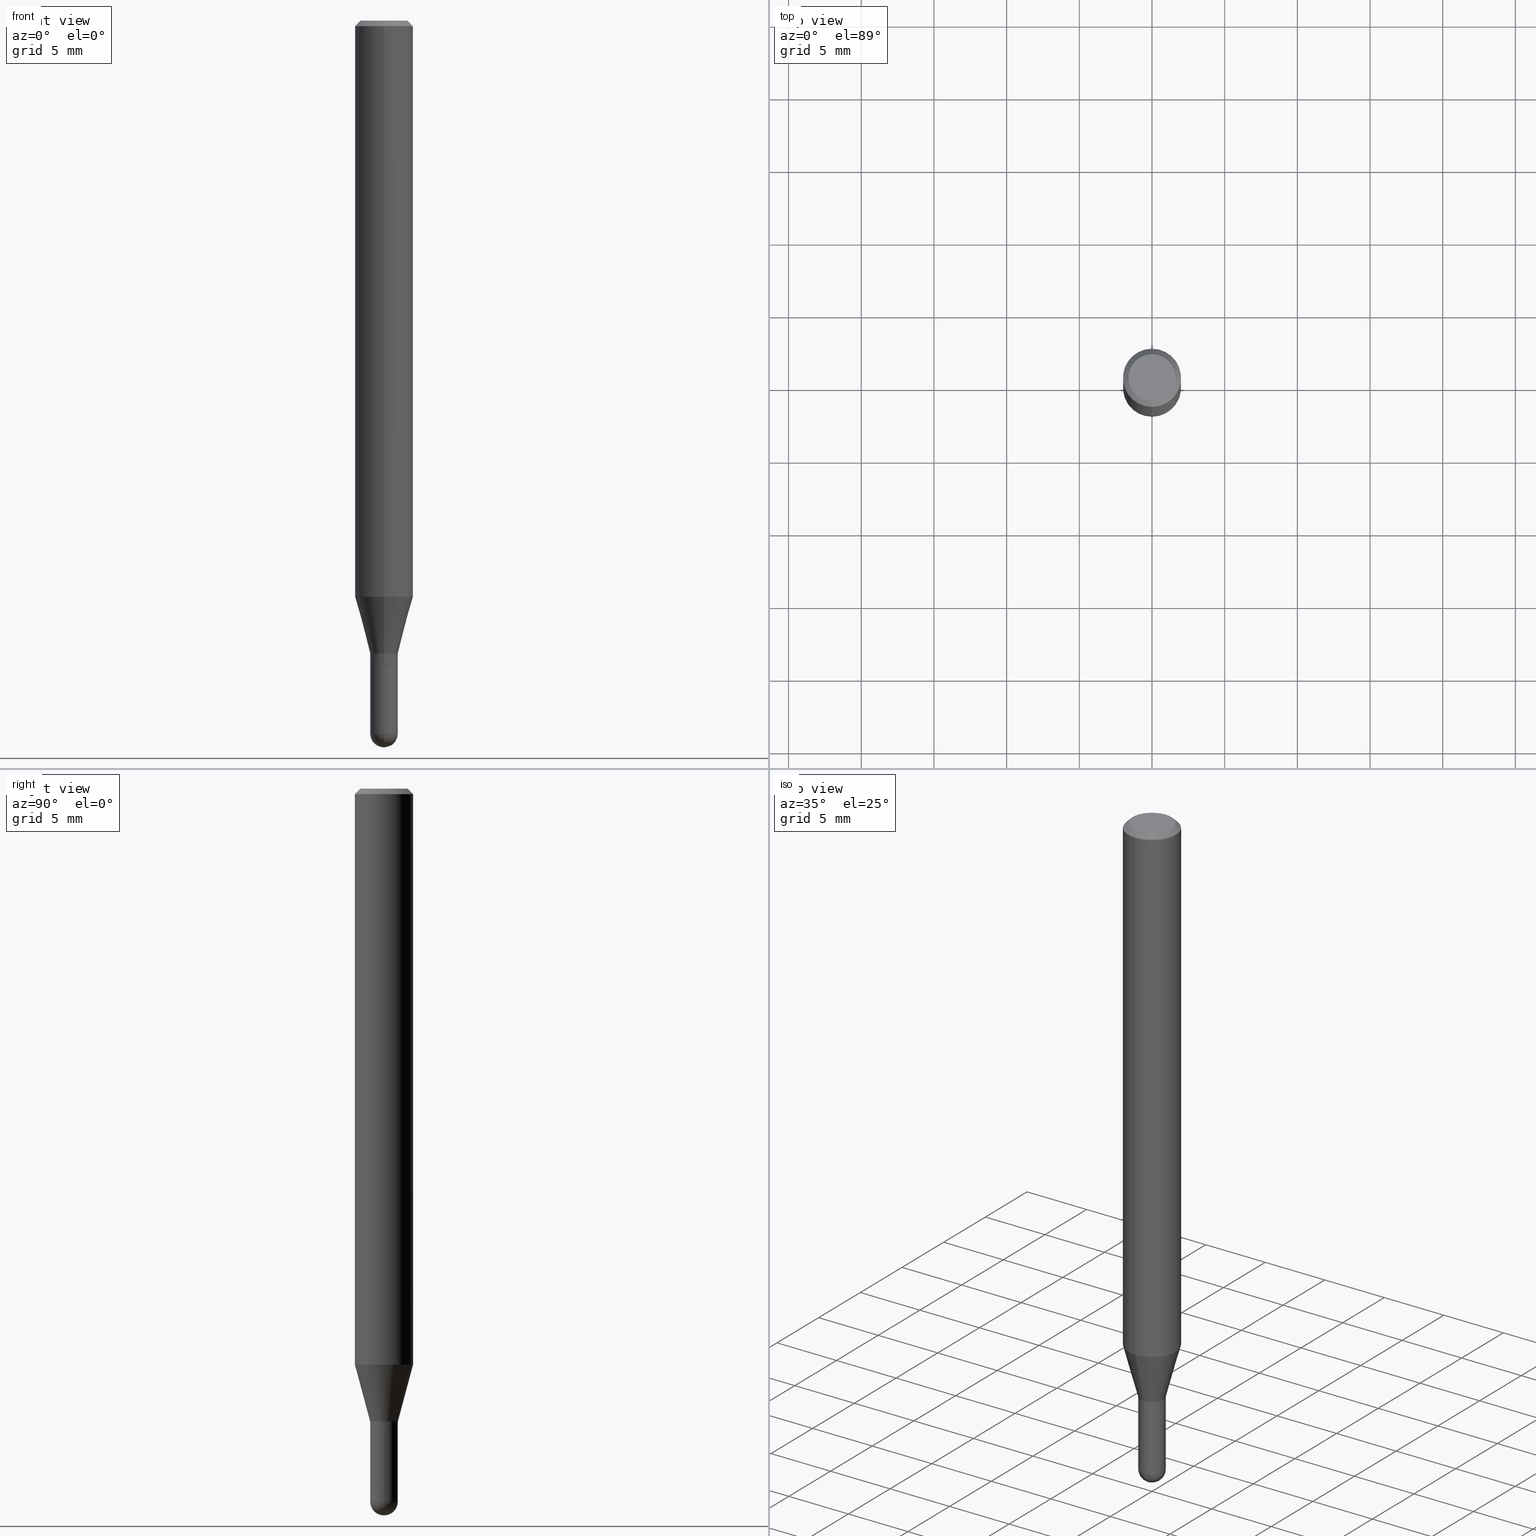
[diagram: canonical four-view strip — front | top / right | iso, engineering-drawing reading convention]
A machine part, canonical four-view strip (front | top / right | iso — engineering-drawing reading convention). The complete STEP part file that produces these views, byte-faithful:
ISO-10303-21;
HEADER;
FILE_DESCRIPTION (( 'STEP AP203' ),
    '1' );
FILE_NAME ('03024.STEP',
    '2024-03-08T18:01:14',
    ( '' ),
    ( '' ),
    'SwSTEP 2.0',
    'SolidWorks 2023',
    '' );
FILE_SCHEMA (( 'CONFIG_CONTROL_DESIGN' ));
ENDSEC;

DATA;
#1 = CIRCLE ( 'NONE', #398, 0.03739999999999999575 ) ;
#2 = APPROVAL_DATE_TIME ( #85, #396 ) ;
#3 = CIRCLE ( 'NONE', #259, 0.03740000000000000269 ) ;
#4 = DIRECTION ( 'NONE',  ( -2.445448542829989062E-29, 3.491510357121035308E-15, 1.000000000000000000 ) ) ;
#5 = DIRECTION ( 'NONE',  ( -2.445448542829989062E-29, 3.491510357121035308E-15, 1.000000000000000000 ) ) ;
#6 = EDGE_CURVE ( 'NONE', #254, #233, #272, .T. ) ;
#7 = CARTESIAN_POINT ( 'NONE',  ( -4.888104823412212925E-16, -0.06374999999999998723, 2.057651113953925439E-16 ) ) ;
#8 = EDGE_CURVE ( 'NONE', #507, #81, #408, .T. ) ;
#9 = APPROVAL_PERSON_ORGANIZATION ( #379, #157, #344 ) ;
#10 = DIRECTION ( 'NONE',  ( -2.445468806185136597E-29, 3.491481338843145583E-15, 1.000000000000000000 ) ) ;
#11 = CARTESIAN_POINT ( 'NONE',  ( 4.265142144867497014E-29, -6.089492603076330929E-15, -1.744100000000000206 ) ) ;
#12 = ADVANCED_FACE ( 'NONE', ( #109 ), #361, .T. ) ;
#13 = CARTESIAN_POINT ( 'NONE',  ( 0.000000000000000000, 0.000000000000000000, 0.000000000000000000 ) ) ;
#14 = AXIS2_PLACEMENT_3D ( 'NONE', #263, #334, #336 ) ;
#15 = DIRECTION ( 'NONE',  ( 1.000000000000000000, -6.982962677686274599E-15, 0.000000000000000000 ) ) ;
#16 = ORIENTED_EDGE ( 'NONE', *, *, #324, .F. ) ;
#17 = FACE_OUTER_BOUND ( 'NONE', #412, .T. ) ;
#18 = AXIS2_PLACEMENT_3D ( 'NONE', #128, #91, #33 ) ;
#19 = CARTESIAN_POINT ( 'NONE',  ( -2.576713228065805481E-16, -0.03690000000000609459, -1.744100000000000428 ) ) ;
#20 = ORIENTED_EDGE ( 'NONE', *, *, #8, .F. ) ;
#21 = DIRECTION ( 'NONE',  ( -2.445448542829989062E-29, 3.491510357121035308E-15, 1.000000000000000000 ) ) ;
#22 = DIRECTION ( 'NONE',  ( 1.839019923739599921E-15, 0.2588190451025249028, 0.9659258262890670910 ) ) ;
#23 = DIRECTION ( 'NONE',  ( -6.982962677686266711E-15, -1.000000000000000000, 0.000000000000000000 ) ) ;
#24 = ADVANCED_FACE ( 'NONE', ( #17 ), #186, .T. ) ;
#25 = CARTESIAN_POINT ( 'NONE',  ( 4.719246489702586893E-29, -6.746979792468809497E-15, -1.931100000000000039 ) ) ;
#26 = ORIENTED_EDGE ( 'NONE', *, *, #146, .F. ) ;
#27 = AXIS2_PLACEMENT_3D ( 'NONE', #41, #5, #445 ) ;
#28 = ORIENTED_EDGE ( 'NONE', *, *, #178, .T. ) ;
#29 =( CONVERSION_BASED_UNIT ( 'INCH', #194 ) LENGTH_UNIT ( ) NAMED_UNIT ( #481 ) );
#30 = ADVANCED_FACE ( 'NONE', ( #369 ), #325, .F. ) ;
#31 = ORIENTED_EDGE ( 'NONE', *, *, #262, .F. ) ;
#32 = PERSON_AND_ORGANIZATION_ROLE ( 'design_supplier' ) ;
#33 = DIRECTION ( 'NONE',  ( -1.000000000000000000, 6.982962677686265922E-15, -4.876176775795935793E-29 ) ) ;
#34 = AXIS2_PLACEMENT_3D ( 'NONE', #183, #436, #440 ) ;
#35 = CIRCLE ( 'NONE', #342, 0.03740000000000019698 ) ;
#36 = DIRECTION ( 'NONE',  ( -1.807323732225329745E-15, -0.2588190451025181305, 0.9659258262890689783 ) ) ;
#37 = EDGE_CURVE ( 'NONE', #81, #507, #174, .T. ) ;
#38 = PLANE ( 'NONE',  #18 ) ;
#39 = ORIENTED_EDGE ( 'NONE', *, *, #366, .F. ) ;
#40 = LINE ( 'NONE', #308, #228 ) ;
#41 = CARTESIAN_POINT ( 'NONE',  ( 4.263884079278369926E-29, -6.087797458676238255E-15, -1.743600000000000261 ) ) ;
#42 = EDGE_CURVE ( 'NONE', #166, #507, #151, .T. ) ;
#43 = APPROVAL_STATUS ( 'not_yet_approved' ) ;
#44 = CARTESIAN_POINT ( 'NONE',  ( 4.112920151034929961E-46, -5.872257401389378320E-32, -1.681867387107341630E-17 ) ) ;
#45 = EDGE_CURVE ( 'NONE', #233, #254, #291, .T. ) ;
#46 = CARTESIAN_POINT ( 'NONE',  ( 3.815339171734212769E-29, -5.447383578402168473E-15, -1.560179699107028028 ) ) ;
#47 = ORIENTED_EDGE ( 'NONE', *, *, #317, .F. ) ;
#48 = CARTESIAN_POINT ( 'NONE',  ( 5.499083108677937401E-16, 0.07874999999999994504, -0.01500000000000029261 ) ) ;
#49 = CC_DESIGN_PERSON_AND_ORGANIZATION_ASSIGNMENT ( #422, #82, ( #162 ) ) ;
#50 = AXIS2_PLACEMENT_3D ( 'NONE', #168, #311, #277 ) ;
#51 = CARTESIAN_POINT ( 'NONE',  ( -0.03739999999999999575, 2.657429831742774393E-16, -1.839681723755334690E-30 ) ) ;
#52 = CARTESIAN_POINT ( 'NONE',  ( 4.112920151034929961E-46, -5.872257401389378320E-32, -1.681867387107341630E-17 ) ) ;
#53 = VERTEX_POINT ( 'NONE', #448 ) ;
#54 = DIRECTION ( 'NONE',  ( 6.982962677686265922E-15, 1.000000000000000000, 0.000000000000000000 ) ) ;
#55 = ADVANCED_FACE ( 'NONE', ( #69 ), #273, .T. ) ;
#56 = CC_DESIGN_APPROVAL ( #157, ( #162 ) ) ;
#57 = DIRECTION ( 'NONE',  ( -2.445448542829989062E-29, 3.491510357121035308E-15, 1.000000000000000000 ) ) ;
#58 = ORIENTED_EDGE ( 'NONE', *, *, #456, .T. ) ;
#59 = ADVANCED_FACE ( 'NONE', ( #176 ), #187, .T. ) ;
#60 = AXIS2_PLACEMENT_3D ( 'NONE', #463, #466, #172 ) ;
#61 = CARTESIAN_POINT ( 'NONE',  ( -0.03739999999999999575, -6.150203125083888117E-15, -1.931100000000000039 ) ) ;
#62 = AXIS2_PLACEMENT_3D ( 'NONE', #139, #362, #439 ) ;
#63 = EDGE_LOOP ( 'NONE', ( #269, #371, #31, #418 ) ) ;
#64 = PERSON_AND_ORGANIZATION_ROLE ( 'design_owner' ) ;
#65 = CARTESIAN_POINT ( 'NONE',  ( 2.621902694955195830E-16, 0.03689999999999390989, -1.744100000000000428 ) ) ;
#66 = LOCAL_TIME ( 13, 1, 14.00000000000000000, #87 ) ;
#67 = LOCAL_TIME ( 13, 1, 14.00000000000000000, #354 ) ;
#68 = ORIENTED_EDGE ( 'NONE', *, *, #45, .F. ) ;
#69 = FACE_OUTER_BOUND ( 'NONE', #78, .T. ) ;
#70 = EDGE_LOOP ( 'NONE', ( #222, #347, #337, #201 ) ) ;
#71 = EDGE_CURVE ( 'NONE', #233, #500, #40, .T. ) ;
#72 = AXIS2_PLACEMENT_3D ( 'NONE', #255, #479, #15 ) ;
#73 = ADVANCED_FACE ( 'NONE', ( #380 ), #38, .F. ) ;
#74 = CIRCLE ( 'NONE', #193, 0.03739999999999999575 ) ;
#75 = ORIENTED_EDGE ( 'NONE', *, *, #42, .F. ) ;
#76 = CARTESIAN_POINT ( 'NONE',  ( -5.499083108677930499E-16, -0.07875000000000004219, -0.01499999999999974097 ) ) ;
#77 = ORIENTED_EDGE ( 'NONE', *, *, #330, .F. ) ;
#78 = EDGE_LOOP ( 'NONE', ( #389, #28, #415, #112 ) ) ;
#79 = DATE_AND_TIME ( #385, #416 ) ;
#80 = CYLINDRICAL_SURFACE ( 'NONE', #199, 0.03739999999999999575 ) ;
#81 = VERTEX_POINT ( 'NONE', #345 ) ;
#82 = PERSON_AND_ORGANIZATION_ROLE ( 'creator' ) ;
#83 = DIRECTION ( 'NONE',  ( -6.982962677686265133E-15, -1.000000000000000000, 0.000000000000000000 ) ) ;
#84 = ADVANCED_FACE ( 'NONE', ( #126 ), #431, .F. ) ;
#85 = DATE_AND_TIME ( #244, #511 ) ;
#86 = CARTESIAN_POINT ( 'NONE',  ( 4.722444811624117324E-29, -6.742399613439998507E-15, -1.931100000000000039 ) ) ;
#87 = COORDINATED_UNIVERSAL_TIME_OFFSET ( 5, 0, .BEHIND. ) ;
#88 = EDGE_CURVE ( 'NONE', #500, #140, #428, .T. ) ;
#89 = DIRECTION ( 'NONE',  ( 6.982962677686265922E-15, 1.000000000000000000, -3.491510357121035308E-15 ) ) ;
#90 = APPROVAL_ROLE ( '' ) ;
#91 = DIRECTION ( 'NONE',  ( 2.438088387897960049E-29, -3.491481338843145188E-15, -1.000000000000000000 ) ) ;
#92 = VECTOR ( 'NONE', #182, 39.37007874015748143 ) ;
#93 = AXIS2_PLACEMENT_3D ( 'NONE', #356, #57, #101 ) ;
#94 = LINE ( 'NONE', #360, #383 ) ;
#95 = CARTESIAN_POINT ( 'NONE',  ( 5.595524044110787031E-16, 0.07875000000000000056, -2.749564406232815009E-16 ) ) ;
#96 = LOCAL_TIME ( 13, 1, 14.00000000000000000, #462 ) ;
#97 = CARTESIAN_POINT ( 'NONE',  ( 0.03739999999999999575, -6.677108912403631907E-15, -1.931100000000000039 ) ) ;
#98 = CLOSED_SHELL ( 'NONE', ( #55, #471, #160, #252, #59, #197, #476, #401, #84, #30, #283, #475 ) ) ;
#99 = DIRECTION ( 'NONE',  ( -4.851104656540965064E-15, -0.7071067811865501263, -0.7071067811865449082 ) ) ;
#100 = DIRECTION ( 'NONE',  ( -2.445448542829989062E-29, 3.491510357121035308E-15, 1.000000000000000000 ) ) ;
#101 = DIRECTION ( 'NONE',  ( -6.982962677686264344E-15, -1.000000000000000000, 3.491510357121034914E-15 ) ) ;
#102 = AXIS2_PLACEMENT_3D ( 'NONE', #231, #302, #341 ) ;
#103 = UNCERTAINTY_MEASURE_WITH_UNIT (LENGTH_MEASURE( 1.000000000000000082E-05 ), #29, 'distance_accuracy_value', 'NONE');
#104 = EDGE_LOOP ( 'NONE', ( #77, #402 ) ) ;
#105 = DIRECTION ( 'NONE',  ( -2.445448542829989062E-29, 3.491510357121035308E-15, 1.000000000000000000 ) ) ;
#106 = AXIS2_PLACEMENT_3D ( 'NONE', #245, #275, #137 ) ;
#107 = DIRECTION ( 'NONE',  ( -6.982962677686265922E-15, -1.000000000000000000, 3.491510357121034914E-15 ) ) ;
#108 = ORIENTED_EDGE ( 'NONE', *, *, #42, .T. ) ;
#109 = FACE_OUTER_BOUND ( 'NONE', #343, .T. ) ;
#110 = DIRECTION ( 'NONE',  ( -6.982962677686265133E-15, -1.000000000000000000, 0.000000000000000000 ) ) ;
#111 = ORIENTED_EDGE ( 'NONE', *, *, #324, .T. ) ;
#112 = ORIENTED_EDGE ( 'NONE', *, *, #71, .F. ) ;
#113 = DIRECTION ( 'NONE',  ( -2.445448542829989062E-29, 3.491510357121035308E-15, 1.000000000000000000 ) ) ;
#114 = CIRCLE ( 'NONE', #102, 0.03739999999999999575 ) ;
#115 = EDGE_LOOP ( 'NONE', ( #494, #158 ) ) ;
#116 = CYLINDRICAL_SURFACE ( 'NONE', #414, 0.03739999999999991942 ) ;
#117 = CIRCLE ( 'NONE', #506, 0.03739999999999999575 ) ;
#118 = AXIS2_PLACEMENT_3D ( 'NONE', #495, #147, #292 ) ;
#119 = ORIENTED_EDGE ( 'NONE', *, *, #338, .T. ) ;
#120 = PERSON_AND_ORGANIZATION_ROLE ( 'classification_officer' ) ;
#121 = EDGE_CURVE ( 'NONE', #459, #368, #1, .T. ) ;
#122 = ORIENTED_EDGE ( 'NONE', *, *, #351, .F. ) ;
#123 = COORDINATED_UNIVERSAL_TIME_OFFSET ( 5, 0, .BEHIND. ) ;
#124 = EDGE_CURVE ( 'NONE', #353, #297, #426, .T. ) ;
#125 = AXIS2_PLACEMENT_3D ( 'NONE', #161, #505, #221 ) ;
#126 = FACE_OUTER_BOUND ( 'NONE', #115, .T. ) ;
#127 = ORIENTED_EDGE ( 'NONE', *, *, #37, .T. ) ;
#128 = CARTESIAN_POINT ( 'NONE',  ( 2.611628041455089987E-16, 0.03739999999999391034, -1.744100000000000206 ) ) ;
#129 = AXIS2_PLACEMENT_3D ( 'NONE', #46, #141, #482 ) ;
#130 = DATE_AND_TIME ( #387, #67 ) ;
#131 = ORIENTED_EDGE ( 'NONE', *, *, #503, .F. ) ;
#132 = DIRECTION ( 'NONE',  ( -2.445448542829989062E-29, 3.491510357121035308E-15, 1.000000000000000000 ) ) ;
#133 = EDGE_LOOP ( 'NONE', ( #454, #480, #58, #177 ) ) ;
#134 = CALENDAR_DATE ( 2024, 8, 3 ) ;
#135 = CARTESIAN_POINT ( 'NONE',  ( 4.719246489702586893E-29, -6.746979792468809497E-15, -1.931100000000000039 ) ) ;
#136 = AXIS2_PLACEMENT_3D ( 'NONE', #52, #216, #107 ) ;
#137 = DIRECTION ( 'NONE',  ( 6.982962677686265922E-15, 1.000000000000000000, 0.000000000000000000 ) ) ;
#138 = CIRCLE ( 'NONE', #34, 0.03690000000000000224 ) ;
#139 = CARTESIAN_POINT ( 'NONE',  ( 4.722444811624117324E-29, -6.742399613439998507E-15, -1.931100000000000039 ) ) ;
#140 = VERTEX_POINT ( 'NONE', #204 ) ;
#141 = DIRECTION ( 'NONE',  ( -2.445448542829989062E-29, 3.491510357121035308E-15, 1.000000000000000000 ) ) ;
#142 = VECTOR ( 'NONE', #22, 39.37007874015748143 ) ;
#143 = DIRECTION ( 'NONE',  ( 2.445448542829989062E-29, -3.491510357121035308E-15, -1.000000000000000000 ) ) ;
#144 = AXIS2_PLACEMENT_3D ( 'NONE', #406, #21, #399 ) ;
#145 = CONICAL_SURFACE ( 'NONE', #483, 0.07875000000000000056, 0.7853981633974485010 ) ;
#146 = EDGE_CURVE ( 'NONE', #166, #159, #246, .T. ) ;
#147 = DIRECTION ( 'NONE',  ( -2.445448542829989062E-29, 3.491510357121035308E-15, 1.000000000000000000 ) ) ;
#148 = LINE ( 'NONE', #95, #407 ) ;
#149 = ORIENTED_EDGE ( 'NONE', *, *, #456, .F. ) ;
#150 = ADVANCED_FACE ( 'NONE', ( #350 ), #512, .T. ) ;
#151 = LINE ( 'NONE', #295, #390 ) ;
#152 = DIRECTION ( 'NONE',  ( -2.445448542829989062E-29, 3.491510357121035308E-15, 1.000000000000000000 ) ) ;
#153 = VERTEX_POINT ( 'NONE', #352 ) ;
#154 = DIRECTION ( 'NONE',  ( 1.000000000000000000, -6.982962677686266711E-15, 4.876176775795936353E-29 ) ) ;
#155 = CARTESIAN_POINT ( 'NONE',  ( 2.657429831743207280E-16, 0.03739999999999420871, -1.714499999999999913 ) ) ;
#156 = CARTESIAN_POINT ( 'NONE',  ( -2.657429831742302063E-16, -0.03740000000000674035, -1.931100000000000039 ) ) ;
#157 = APPROVAL ( #43, 'UNSPECIFIED' ) ;
#158 = ORIENTED_EDGE ( 'NONE', *, *, #146, .T. ) ;
#159 = VERTEX_POINT ( 'NONE', #313 ) ;
#160 = ADVANCED_FACE ( 'NONE', ( #179 ), #381, .T. ) ;
#161 = CARTESIAN_POINT ( 'NONE',  ( 0.000000000000000000, 0.000000000000000000, 0.000000000000000000 ) ) ;
#162 = PRODUCT_DEFINITION_FORMATION_WITH_SPECIFIED_SOURCE ( 'ANY', '', #265, .NOT_KNOWN. ) ;
#163 = EDGE_LOOP ( 'NONE', ( #452, #457, #299, #309 ) ) ;
#164 = DATE_TIME_ROLE ( 'classification_date' ) ;
#165 = AXIS2_PLACEMENT_3D ( 'NONE', #210, #319, #290 ) ;
#166 = VERTEX_POINT ( 'NONE', #7 ) ;
#167 = PERSON_AND_ORGANIZATION ( #226, #190 ) ;
#168 = CARTESIAN_POINT ( 'NONE',  ( 0.000000000000000000, 0.000000000000000000, 0.000000000000000000 ) ) ;
#169 = ORIENTED_EDGE ( 'NONE', *, *, #71, .T. ) ;
#170 = CONICAL_SURFACE ( 'NONE', #464, 0.03690000000000000224, 0.7853981633969275844 ) ;
#171 = DIRECTION ( 'NONE',  ( -7.105427357601001859E-15, -1.000000000000000000, 0.000000000000000000 ) ) ;
#172 = DIRECTION ( 'NONE',  ( -6.982962677686265922E-15, -1.000000000000000000, 0.000000000000000000 ) ) ;
#173 = APPROVAL ( #429, 'UNSPECIFIED' ) ;
#174 = CIRCLE ( 'NONE', #118, 0.07875000000000000056 ) ;
#175 = PERSON_AND_ORGANIZATION ( #226, #190 ) ;
#176 = FACE_OUTER_BOUND ( 'NONE', #63, .T. ) ;
#177 = ORIENTED_EDGE ( 'NONE', *, *, #37, .F. ) ;
#178 = EDGE_CURVE ( 'NONE', #254, #305, #238, .T. ) ;
#179 = FACE_OUTER_BOUND ( 'NONE', #363, .T. ) ;
#180 = EDGE_CURVE ( 'NONE', #500, #305, #35, .T. ) ;
#181 = CYLINDRICAL_SURFACE ( 'NONE', #93, 0.07875000000000000056 ) ;
#182 = DIRECTION ( 'NONE',  ( -4.937700262161976356E-15, -0.7071067811861768693, 0.7071067811869181652 ) ) ;
#183 = CARTESIAN_POINT ( 'NONE',  ( 4.265106803549784481E-29, -6.089543213854800524E-15, -1.744100000000000428 ) ) ;
#184 = APPROVAL_PERSON_ORGANIZATION ( #167, #173, #306 ) ;
#185 = CARTESIAN_POINT ( 'NONE',  ( 3.815339171734212769E-29, -5.447383578402168473E-15, -1.560179699107028028 ) ) ;
#186 = CYLINDRICAL_SURFACE ( 'NONE', #372, 0.03739999999999999575 ) ;
#187 = CONICAL_SURFACE ( 'NONE', #60, 0.03740000000000019698, 0.2617993877991502405 ) ;
#188 = DIRECTION ( 'NONE',  ( -6.982962677686264344E-15, -1.000000000000000000, 3.469013325287953293E-15 ) ) ;
#189 = DIRECTION ( 'NONE',  ( 6.982962677686265922E-15, 1.000000000000000000, 0.000000000000000000 ) ) ;
#190 = ORGANIZATION ( 'UNSPECIFIED', 'UNSPECIFIED', '' ) ;
#191 = CARTESIAN_POINT ( 'NONE',  ( -5.499083108677933457E-16, -0.07875000000000000056, 2.749564406232815009E-16 ) ) ;
#192 = VERTEX_POINT ( 'NONE', #384 ) ;
#193 = AXIS2_PLACEMENT_3D ( 'NONE', #135, #348, #171 ) ;
#194 = LENGTH_MEASURE_WITH_UNIT ( LENGTH_MEASURE( 0.02539999999999999897 ), #367 );
#195 = ORIENTED_EDGE ( 'NONE', *, *, #366, .T. ) ;
#196 = CYLINDRICAL_SURFACE ( 'NONE', #14, 0.07875000000000000056 ) ;
#197 = ADVANCED_FACE ( 'NONE', ( #316 ), #213, .T. ) ;
#198 = APPROVAL_DATE_TIME ( #79, #173 ) ;
#199 = AXIS2_PLACEMENT_3D ( 'NONE', #13, #358, #217 ) ;
#200 = DIRECTION ( 'NONE',  ( -6.982962677686265922E-15, -1.000000000000000000, 0.000000000000000000 ) ) ;
#201 = ORIENTED_EDGE ( 'NONE', *, *, #248, .F. ) ;
#202 = PRODUCT_DEFINITION_SHAPE ( 'NONE', 'NONE',  #498 ) ;
#203 = DIRECTION ( 'NONE',  ( -6.982962677686265922E-15, -1.000000000000000000, 0.000000000000000000 ) ) ;
#204 = CARTESIAN_POINT ( 'NONE',  ( -5.499083108677556776E-16, -0.07875000000000548228, -1.560179699107027806 ) ) ;
#205 = EDGE_CURVE ( 'NONE', #53, #459, #74, .T. ) ;
#206 = CARTESIAN_POINT ( 'NONE',  ( 4.451638707024993845E-16, 0.06374999999999998723, -2.309931222020026776E-16 ) ) ;
#207 = AXIS2_PLACEMENT_3D ( 'NONE', #185, #152, #188 ) ;
#208 = CALENDAR_DATE ( 2024, 8, 3 ) ;
#209 = DIRECTION ( 'NONE',  ( -2.445448542829989062E-29, 3.491510357121035308E-15, 1.000000000000000000 ) ) ;
#210 = CARTESIAN_POINT ( 'NONE',  ( 4.265106803549784481E-29, -6.089543213854800524E-15, -1.744100000000000428 ) ) ;
#211 = ADVANCED_FACE ( 'NONE', ( #278 ), #80, .T. ) ;
#212 = DIRECTION ( 'NONE',  ( 4.937700262164548831E-15, 0.7071067811865452413, -0.7071067811865497932 ) ) ;
#213 = CONICAL_SURFACE ( 'NONE', #417, 0.03740000000000019698, 0.2617993877991502405 ) ;
#214 = DIRECTION ( 'NONE',  ( -2.445468806185136877E-29, 3.491481338843145188E-15, 1.000000000000000000 ) ) ;
#215 = CARTESIAN_POINT ( 'NONE',  ( 4.719246489702586893E-29, -6.746979792468809497E-15, -1.931100000000000039 ) ) ;
#216 = DIRECTION ( 'NONE',  ( -2.445448542829989062E-29, 3.491510357121035308E-15, 1.000000000000000000 ) ) ;
#217 = DIRECTION ( 'NONE',  ( 1.000000000000000000, -6.982962677686266711E-15, 4.876176775795936353E-29 ) ) ;
#218 = ORIENTED_EDGE ( 'NONE', *, *, #8, .T. ) ;
#219 = AXIS2_PLACEMENT_3D ( 'NONE', #405, #105, #23 ) ;
#220 = EDGE_CURVE ( 'NONE', #305, #500, #478, .T. ) ;
#221 = DIRECTION ( 'NONE',  ( 1.000000000000000000, 0.000000000000000000, 0.000000000000000000 ) ) ;
#222 = ORIENTED_EDGE ( 'NONE', *, *, #437, .F. ) ;
#223 = DIRECTION ( 'NONE',  ( -2.445448542829989062E-29, 3.491510357121035308E-15, 1.000000000000000000 ) ) ;
#224 = DIRECTION ( 'NONE',  ( -2.445468806185136597E-29, 3.491481338843145583E-15, 1.000000000000000000 ) ) ;
#225 = DIRECTION ( 'NONE',  ( -2.445448542829989062E-29, 3.491510357121035308E-15, 1.000000000000000000 ) ) ;
#226 = PERSON ( 'UNSPECIFIED', 'UNSPECIFIED', 'UNSPECIFIED', ('UNSPECIFIED'), ('UNSPECIFIED'), ('UNSPECIFIED') ) ;
#227 = CIRCLE ( 'NONE', #136, 0.06374999999999998723 ) ;
#228 = VECTOR ( 'NONE', #235, 39.37007874015748143 ) ;
#229 = ORIENTED_EDGE ( 'NONE', *, *, #442, .T. ) ;
#230 = LINE ( 'NONE', #191, #474 ) ;
#231 = CARTESIAN_POINT ( 'NONE',  ( 4.722444811624117324E-29, -6.742399613439998507E-15, -1.931100000000000039 ) ) ;
#232 = ORIENTED_EDGE ( 'NONE', *, *, #121, .T. ) ;
#233 = VERTEX_POINT ( 'NONE', #247 ) ;
#234 = SHAPE_DEFINITION_REPRESENTATION ( #202, #282 ) ;
#235 = DIRECTION ( 'NONE',  ( -2.445448542829989062E-29, 3.491510357121035308E-15, 1.000000000000000000 ) ) ;
#236 = EDGE_LOOP ( 'NONE', ( #411, #119, #20, #149 ) ) ;
#237 = AXIS2_PLACEMENT_3D ( 'NONE', #510, #355, #469 ) ;
#238 = LINE ( 'NONE', #388, #455 ) ;
#239 = CC_DESIGN_DATE_AND_TIME_ASSIGNMENT ( #382, #432, ( #498 ) ) ;
#240 = VECTOR ( 'NONE', #214, 39.37007874015748143 ) ;
#241 = PERSON_AND_ORGANIZATION ( #226, #190 ) ;
#242 = DIRECTION ( 'NONE',  ( 1.000000000000000000, -6.982962677686276177E-15, 0.000000000000000000 ) ) ;
#243 = PERSON_AND_ORGANIZATION ( #226, #190 ) ;
#244 = CALENDAR_DATE ( 2024, 8, 3 ) ;
#245 = CARTESIAN_POINT ( 'NONE',  ( 4.719246489702586893E-29, -6.746979792468809497E-15, -1.931100000000000039 ) ) ;
#246 = CIRCLE ( 'NONE', #447, 0.06374999999999998723 ) ;
#247 = CARTESIAN_POINT ( 'NONE',  ( -2.611628041454221747E-16, -0.03740000000000587299, -1.743600000000000261 ) ) ;
#248 = EDGE_CURVE ( 'NONE', #192, #140, #488, .T. ) ;
#249 = FACE_OUTER_BOUND ( 'NONE', #236, .T. ) ;
#250 = LINE ( 'NONE', #51, #240 ) ;
#251 = VECTOR ( 'NONE', #36, 39.37007874015748143 ) ;
#252 = ADVANCED_FACE ( 'NONE', ( #249 ), #181, .T. ) ;
#253 = DIRECTION ( 'NONE',  ( 6.982962677686264344E-15, 1.000000000000000000, -3.496114991891765576E-15 ) ) ;
#254 = VERTEX_POINT ( 'NONE', #397 ) ;
#255 = CARTESIAN_POINT ( 'NONE',  ( 4.265142144867497014E-29, -6.089492603076330929E-15, -1.744100000000000206 ) ) ;
#256 = DESIGN_CONTEXT ( 'detailed design', #502, 'design' ) ;
#257 = EDGE_LOOP ( 'NONE', ( #131, #509, #492, #261 ) ) ;
#258 = AXIS2_PLACEMENT_3D ( 'NONE', #386, #425, #83 ) ;
#259 = AXIS2_PLACEMENT_3D ( 'NONE', #11, #322, #285 ) ;
#260 = CARTESIAN_POINT ( 'NONE',  ( 4.265106803549784481E-29, -6.089543213854800524E-15, -1.744100000000000428 ) ) ;
#261 = ORIENTED_EDGE ( 'NONE', *, *, #6, .F. ) ;
#262 = EDGE_CURVE ( 'NONE', #140, #192, #468, .T. ) ;
#263 = CARTESIAN_POINT ( 'NONE',  ( 0.000000000000000000, 0.000000000000000000, 0.000000000000000000 ) ) ;
#264 = EDGE_LOOP ( 'NONE', ( #75, #301, #491, #127 ) ) ;
#265 = PRODUCT ( '03024', '03024', '', ( #410 ) ) ;
#266 = CARTESIAN_POINT ( 'NONE',  ( 0.000000000000000000, 0.000000000000000000, 0.000000000000000000 ) ) ;
#267 = MANIFOLD_SOLID_BREP ( 'Body-Move/Copy2[2]', #98 ) ;
#268 = COORDINATED_UNIVERSAL_TIME_OFFSET ( 5, 0, .BEHIND. ) ;
#269 = ORIENTED_EDGE ( 'NONE', *, *, #180, .T. ) ;
#270 = DIRECTION ( 'NONE',  ( -2.445468806185136597E-29, 3.491481338843145583E-15, 1.000000000000000000 ) ) ;
#271 = ORIENTED_EDGE ( 'NONE', *, *, #487, .T. ) ;
#272 = CIRCLE ( 'NONE', #27, 0.03739999999999964880 ) ;
#273 = CYLINDRICAL_SURFACE ( 'NONE', #50, 0.03739999999999991942 ) ;
#274 = EDGE_CURVE ( 'NONE', #335, #153, #320, .T. ) ;
#275 = DIRECTION ( 'NONE',  ( -1.000000000000000000, 6.982962677686265922E-15, -4.883557194083112901E-29 ) ) ;
#276 = DATE_AND_TIME ( #134, #96 ) ;
#277 = DIRECTION ( 'NONE',  ( -6.982962677686266711E-15, -1.000000000000000000, 3.491510357121035702E-15 ) ) ;
#278 = FACE_OUTER_BOUND ( 'NONE', #424, .T. ) ;
#279 = AXIS2_PLACEMENT_3D ( 'NONE', #215, #485, #54 ) ;
#280 = ORIENTED_EDGE ( 'NONE', *, *, #289, .T. ) ;
#281 = DIRECTION ( 'NONE',  ( 1.000000000000000000, -6.982962677686276177E-15, 0.000000000000000000 ) ) ;
#282 = ADVANCED_BREP_SHAPE_REPRESENTATION ( '03024', ( #430, #267, #125 ), #423 ) ;
#283 = ADVANCED_FACE ( 'NONE', ( #403 ), #304, .T. ) ;
#284 = ORIENTED_EDGE ( 'NONE', *, *, #503, .T. ) ;
#285 = DIRECTION ( 'NONE',  ( 1.000000000000000000, -6.982962677686274599E-15, 0.000000000000000000 ) ) ;
#286 = CC_DESIGN_APPROVAL ( #396, ( #498 ) ) ;
#287 = SECURITY_CLASSIFICATION ( '', '', #470 ) ;
#288 = CC_DESIGN_DATE_AND_TIME_ASSIGNMENT ( #130, #164, ( #287 ) ) ;
#289 = EDGE_CURVE ( 'NONE', #409, #504, #434, .T. ) ;
#290 = DIRECTION ( 'NONE',  ( -6.982962677686265133E-15, -1.000000000000000000, 0.000000000000000000 ) ) ;
#291 = CIRCLE ( 'NONE', #219, 0.03739999999999964880 ) ;
#292 = DIRECTION ( 'NONE',  ( -6.982962677686264344E-15, -1.000000000000000000, 3.496114991891765576E-15 ) ) ;
#293 = CARTESIAN_POINT ( 'NONE',  ( 2.639666263349181094E-16, 0.03689999999999390989, -1.744100000000000428 ) ) ;
#294 = ORIENTED_EDGE ( 'NONE', *, *, #314, .T. ) ;
#295 = CARTESIAN_POINT ( 'NONE',  ( -5.402642173245076924E-16, -0.07875000000000004219, -0.01499999999999974097 ) ) ;
#296 = APPLICATION_PROTOCOL_DEFINITION ( 'international standard', 'config_control_design', 1994, #326 ) ;
#297 = VERTEX_POINT ( 'NONE', #19 ) ;
#298 =( NAMED_UNIT ( * ) PLANE_ANGLE_UNIT ( ) SI_UNIT ( $, .RADIAN. ) );
#299 = ORIENTED_EDGE ( 'NONE', *, *, #487, .F. ) ;
#300 = LINE ( 'NONE', #155, #142 ) ;
#301 = ORIENTED_EDGE ( 'NONE', *, *, #404, .F. ) ;
#302 = DIRECTION ( 'NONE',  ( -2.445468806185136597E-29, 3.491481338843145583E-15, 1.000000000000000000 ) ) ;
#303 = DIRECTION ( 'NONE',  ( 5.024295867785445738E-15, 0.7071067811861817543, 0.7071067811869132802 ) ) ;
#304 = CONICAL_SURFACE ( 'NONE', #165, 0.03690000000000000224, 0.7853981633969275844 ) ;
#305 = VERTEX_POINT ( 'NONE', #489 ) ;
#306 = APPROVAL_ROLE ( '' ) ;
#307 = APPLICATION_PROTOCOL_DEFINITION ( 'international standard', 'config_control_design', 1994, #502 ) ;
#308 = CARTESIAN_POINT ( 'NONE',  ( -2.611628041454658086E-16, -0.03739999999999991942, 1.305824873563264541E-16 ) ) ;
#309 = ORIENTED_EDGE ( 'NONE', *, *, #289, .F. ) ;
#310 = AXIS2_PLACEMENT_3D ( 'NONE', #25, #364, #189 ) ;
#311 = DIRECTION ( 'NONE',  ( -2.445448542829989062E-29, 3.491510357121035308E-15, 1.000000000000000000 ) ) ;
#312 = CLOSED_SHELL ( 'NONE', ( #211, #150, #73, #12, #24 ) ) ;
#313 = CARTESIAN_POINT ( 'NONE',  ( 4.975360907851465623E-16, 0.06374999999999998723, -2.394024591375393642E-16 ) ) ;
#314 = EDGE_CURVE ( 'NONE', #368, #335, #94, .T. ) ;
#315 = APPROVAL_STATUS ( 'not_yet_approved' ) ;
#316 = FACE_OUTER_BOUND ( 'NONE', #70, .T. ) ;
#317 = EDGE_CURVE ( 'NONE', #297, #233, #493, .T. ) ;
#318 = CARTESIAN_POINT ( 'NONE',  ( 4.192721526682015899E-29, -5.986194507284014547E-15, -1.714499999999999913 ) ) ;
#319 = DIRECTION ( 'NONE',  ( -2.445448542829989062E-29, 3.491510357121035308E-15, 1.000000000000000000 ) ) ;
#320 = CIRCLE ( 'NONE', #72, 0.03740000000000000269 ) ;
#321 = ORIENTED_EDGE ( 'NONE', *, *, #178, .F. ) ;
#322 = DIRECTION ( 'NONE',  ( -2.445468806185136597E-29, 3.491481338843145583E-15, 1.000000000000000000 ) ) ;
#323 = CC_DESIGN_PERSON_AND_ORGANIZATION_ASSIGNMENT ( #243, #392, ( #498 ) ) ;
#324 = EDGE_CURVE ( 'NONE', #368, #409, #117, .T. ) ;
#325 = PLANE ( 'NONE',  #441 ) ;
#326 = APPLICATION_CONTEXT ( 'configuration controlled 3d designs of mechanical parts and assemblies' ) ;
#327 = FACE_OUTER_BOUND ( 'NONE', #264, .T. ) ;
#328 = CARTESIAN_POINT ( 'NONE',  ( 0.03740000000000000269, -6.350655407221797329E-15, -1.744100000000000206 ) ) ;
#329 = ORIENTED_EDGE ( 'NONE', *, *, #377, .F. ) ;
#330 = EDGE_CURVE ( 'NONE', #297, #353, #138, .T. ) ;
#331 = DIRECTION ( 'NONE',  ( -2.445468806185136877E-29, 3.491481338843145188E-15, 1.000000000000000000 ) ) ;
#332 = DIRECTION ( 'NONE',  ( -6.982962677686265922E-15, -1.000000000000000000, 3.491510357121035308E-15 ) ) ;
#333 = ORIENTED_EDGE ( 'NONE', *, *, #205, .F. ) ;
#334 = DIRECTION ( 'NONE',  ( -2.445448542829989062E-29, 3.491510357121035308E-15, 1.000000000000000000 ) ) ;
#335 = VERTEX_POINT ( 'NONE', #328 ) ;
#336 = DIRECTION ( 'NONE',  ( -6.982962677686264344E-15, -1.000000000000000000, 3.491510357121034914E-15 ) ) ;
#337 = ORIENTED_EDGE ( 'NONE', *, *, #88, .T. ) ;
#338 = EDGE_CURVE ( 'NONE', #192, #81, #148, .T. ) ;
#339 = AXIS2_PLACEMENT_3D ( 'NONE', #206, #393, #89 ) ;
#340 = ORIENTED_EDGE ( 'NONE', *, *, #377, .T. ) ;
#341 = DIRECTION ( 'NONE',  ( 1.000000000000000000, -6.982962677686276177E-15, 0.000000000000000000 ) ) ;
#342 = AXIS2_PLACEMENT_3D ( 'NONE', #318, #132, #200 ) ;
#343 = EDGE_LOOP ( 'NONE', ( #333, #229, #16, #461 ) ) ;
#344 = APPROVAL_ROLE ( '' ) ;
#345 = CARTESIAN_POINT ( 'NONE',  ( 5.595524044111170615E-16, 0.07874999999999994504, -0.01500000000000029261 ) ) ;
#346 = CC_DESIGN_PERSON_AND_ORGANIZATION_ASSIGNMENT ( #446, #64, ( #265 ) ) ;
#347 = ORIENTED_EDGE ( 'NONE', *, *, #220, .T. ) ;
#348 = DIRECTION ( 'NONE',  ( -1.000000000000000000, 7.105427357601001070E-15, -4.926315508542082329E-29 ) ) ;
#349 = CIRCLE ( 'NONE', #310, 0.03739999999999999575 ) ;
#350 = FACE_OUTER_BOUND ( 'NONE', #163, .T. ) ;
#351 = EDGE_CURVE ( 'NONE', #159, #81, #395, .T. ) ;
#352 = CARTESIAN_POINT ( 'NONE',  ( -0.03740000000000000269, -6.150203125083888117E-15, -1.744100000000000206 ) ) ;
#353 = VERTEX_POINT ( 'NONE', #293 ) ;
#354 = COORDINATED_UNIVERSAL_TIME_OFFSET ( 5, 0, .BEHIND. ) ;
#355 = DIRECTION ( 'NONE',  ( 2.445448542829989062E-29, -3.491510357121035308E-15, -1.000000000000000000 ) ) ;
#356 = CARTESIAN_POINT ( 'NONE',  ( 0.000000000000000000, 0.000000000000000000, 0.000000000000000000 ) ) ;
#357 = ORIENTED_EDGE ( 'NONE', *, *, #274, .T. ) ;
#358 = DIRECTION ( 'NONE',  ( -2.445468806185136597E-29, 3.491481338843145583E-15, 1.000000000000000000 ) ) ;
#359 = CARTESIAN_POINT ( 'NONE',  ( -2.576713228065805481E-16, -0.03690000000000609459, -1.744100000000000428 ) ) ;
#360 = CARTESIAN_POINT ( 'NONE',  ( 0.03739999999999999575, -2.611628041454663509E-16, 1.823690114147680082E-30 ) ) ;
#361 = SPHERICAL_SURFACE ( 'NONE', #279, 0.03739999999999999575 ) ;
#362 = DIRECTION ( 'NONE',  ( -2.445468806185136597E-29, 3.491481338843145583E-15, 1.000000000000000000 ) ) ;
#363 = EDGE_LOOP ( 'NONE', ( #26, #108, #218, #122 ) ) ;
#364 = DIRECTION ( 'NONE',  ( 1.000000000000000000, -6.982962677686265922E-15, 4.883557194083112340E-29 ) ) ;
#365 = CARTESIAN_POINT ( 'NONE',  ( 4.265106803549783921E-29, -6.089543213854798946E-15, -1.744100000000000206 ) ) ;
#366 = EDGE_CURVE ( 'NONE', #153, #335, #3, .T. ) ;
#367 =( LENGTH_UNIT ( ) NAMED_UNIT ( * ) SI_UNIT ( $, .METRE. ) );
#368 = VERTEX_POINT ( 'NONE', #97 ) ;
#369 = FACE_OUTER_BOUND ( 'NONE', #104, .T. ) ;
#370 = CC_DESIGN_PERSON_AND_ORGANIZATION_ASSIGNMENT ( #241, #120, ( #287 ) ) ;
#371 = ORIENTED_EDGE ( 'NONE', *, *, #437, .T. ) ;
#372 = AXIS2_PLACEMENT_3D ( 'NONE', #496, #224, #154 ) ;
#373 = CARTESIAN_POINT ( 'NONE',  ( 2.611628041455135347E-16, 0.03739999999999325114, -1.931100000000000039 ) ) ;
#374 = ORIENTED_EDGE ( 'NONE', *, *, #274, .F. ) ;
#375 = CARTESIAN_POINT ( 'NONE',  ( -2.611628041454257739E-16, -0.03740000000000617830, -1.714499999999999913 ) ) ;
#376 = VECTOR ( 'NONE', #303, 39.37007874015748143 ) ;
#377 = EDGE_CURVE ( 'NONE', #504, #153, #250, .T. ) ;
#378 = ORIENTED_EDGE ( 'NONE', *, *, #314, .F. ) ;
#379 = PERSON_AND_ORGANIZATION ( #226, #190 ) ;
#380 = FACE_OUTER_BOUND ( 'NONE', #420, .T. ) ;
#381 = CONICAL_SURFACE ( 'NONE', #237, 0.07875000000000000056, 0.7853981633974485010 ) ;
#382 = DATE_AND_TIME ( #208, #66 ) ;
#383 = VECTOR ( 'NONE', #331, 39.37007874015748143 ) ;
#384 = CARTESIAN_POINT ( 'NONE',  ( 5.595524044111165684E-16, 0.07874999999999451883, -1.560179699107028473 ) ) ;
#385 = CALENDAR_DATE ( 2024, 8, 3 ) ;
#386 = CARTESIAN_POINT ( 'NONE',  ( 4.265106803549784481E-29, -6.089543213854800524E-15, -1.744100000000000428 ) ) ;
#387 = CALENDAR_DATE ( 2024, 8, 3 ) ;
#388 = CARTESIAN_POINT ( 'NONE',  ( 2.657429831742768970E-16, 0.03739999999999991942, -1.305824873563264541E-16 ) ) ;
#389 = ORIENTED_EDGE ( 'NONE', *, *, #45, .T. ) ;
#390 = VECTOR ( 'NONE', #99, 39.37007874015748143 ) ;
#391 = EDGE_LOOP ( 'NONE', ( #421, #284, #68, #47 ) ) ;
#392 = PERSON_AND_ORGANIZATION_ROLE ( 'creator' ) ;
#393 = DIRECTION ( 'NONE',  ( 2.445448542829988782E-29, -3.491510357121035308E-15, -1.000000000000000000 ) ) ;
#394 = DIRECTION ( 'NONE',  ( -2.445448542829989062E-29, 3.491510357121035308E-15, 1.000000000000000000 ) ) ;
#395 = LINE ( 'NONE', #48, #490 ) ;
#396 = APPROVAL ( #315, 'UNSPECIFIED' ) ;
#397 = CARTESIAN_POINT ( 'NONE',  ( 2.657429831743166851E-16, 0.03739999999999343155, -1.743600000000000261 ) ) ;
#398 = AXIS2_PLACEMENT_3D ( 'NONE', #86, #270, #242 ) ;
#399 = DIRECTION ( 'NONE',  ( -6.982962677686264344E-15, -1.000000000000000000, 3.496114991891765576E-15 ) ) ;
#400 = DIRECTION ( 'NONE',  ( -6.982962677686265922E-15, -1.000000000000000000, 0.000000000000000000 ) ) ;
#401 = ADVANCED_FACE ( 'NONE', ( #327 ), #145, .T. ) ;
#402 = ORIENTED_EDGE ( 'NONE', *, *, #124, .F. ) ;
#403 = FACE_OUTER_BOUND ( 'NONE', #257, .T. ) ;
#404 = EDGE_CURVE ( 'NONE', #159, #166, #227, .T. ) ;
#405 = CARTESIAN_POINT ( 'NONE',  ( 4.263884079278369926E-29, -6.087797458676238255E-15, -1.743600000000000261 ) ) ;
#406 = CARTESIAN_POINT ( 'NONE',  ( 3.668172814244987692E-31, -5.237265535681559618E-17, -0.01500000000000001679 ) ) ;
#407 = VECTOR ( 'NONE', #100, 39.37007874015748143 ) ;
#408 = CIRCLE ( 'NONE', #144, 0.07875000000000000056 ) ;
#409 = VERTEX_POINT ( 'NONE', #373 ) ;
#410 = MECHANICAL_CONTEXT ( 'NONE', #326, 'mechanical' ) ;
#411 = ORIENTED_EDGE ( 'NONE', *, *, #262, .T. ) ;
#412 = EDGE_LOOP ( 'NONE', ( #329, #271, #232, #294, #39 ) ) ;
#413 = LINE ( 'NONE', #65, #376 ) ;
#414 = AXIS2_PLACEMENT_3D ( 'NONE', #266, #225, #419 ) ;
#415 = ORIENTED_EDGE ( 'NONE', *, *, #180, .F. ) ;
#416 = LOCAL_TIME ( 13, 1, 14.00000000000000000, #268 ) ;
#417 = AXIS2_PLACEMENT_3D ( 'NONE', #508, #473, #203 ) ;
#418 = ORIENTED_EDGE ( 'NONE', *, *, #88, .F. ) ;
#419 = DIRECTION ( 'NONE',  ( -6.982962677686266711E-15, -1.000000000000000000, 3.491510357121035702E-15 ) ) ;
#420 = EDGE_LOOP ( 'NONE', ( #357, #195 ) ) ;
#421 = ORIENTED_EDGE ( 'NONE', *, *, #330, .T. ) ;
#422 = PERSON_AND_ORGANIZATION ( #226, #190 ) ;
#423 =( GEOMETRIC_REPRESENTATION_CONTEXT ( 3 ) GLOBAL_UNCERTAINTY_ASSIGNED_CONTEXT ( ( #103 ) ) GLOBAL_UNIT_ASSIGNED_CONTEXT ( ( #29, #298, #451 ) ) REPRESENTATION_CONTEXT ( 'NONE', 'WORKASPACE' ) );
#424 = EDGE_LOOP ( 'NONE', ( #280, #340, #374, #378, #111 ) ) ;
#425 = DIRECTION ( 'NONE',  ( -2.445448542829989062E-29, 3.491510357121035308E-15, 1.000000000000000000 ) ) ;
#426 = CIRCLE ( 'NONE', #258, 0.03690000000000000224 ) ;
#427 = PERSON_AND_ORGANIZATION ( #226, #190 ) ;
#428 = LINE ( 'NONE', #433, #251 ) ;
#429 = APPROVAL_STATUS ( 'not_yet_approved' ) ;
#430 = MANIFOLD_SOLID_BREP ( 'Body-Move/Copy2[1]', #312 ) ;
#431 = PLANE ( 'NONE',  #339 ) ;
#432 = DATE_TIME_ROLE ( 'creation_date' ) ;
#433 = CARTESIAN_POINT ( 'NONE',  ( -2.611628041454257739E-16, -0.03740000000000617830, -1.714499999999999913 ) ) ;
#434 = CIRCLE ( 'NONE', #62, 0.03739999999999999575 ) ;
#435 = CARTESIAN_POINT ( 'NONE',  ( 4.722444811624117324E-29, -6.742399613439998507E-15, -1.931100000000000039 ) ) ;
#436 = DIRECTION ( 'NONE',  ( -2.445448542829989062E-29, 3.491510357121035308E-15, 1.000000000000000000 ) ) ;
#437 = EDGE_CURVE ( 'NONE', #305, #192, #300, .T. ) ;
#438 = APPROVAL_PERSON_ORGANIZATION ( #175, #396, #90 ) ;
#439 = DIRECTION ( 'NONE',  ( 1.000000000000000000, -6.982962677686276177E-15, 0.000000000000000000 ) ) ;
#440 = DIRECTION ( 'NONE',  ( -6.982962677686265133E-15, -1.000000000000000000, 0.000000000000000000 ) ) ;
#441 = AXIS2_PLACEMENT_3D ( 'NONE', #365, #444, #332 ) ;
#442 = EDGE_CURVE ( 'NONE', #53, #409, #349, .T. ) ;
#443 = CARTESIAN_POINT ( 'NONE',  ( 4.192721526682015899E-29, -5.986194507284014547E-15, -1.714499999999999913 ) ) ;
#444 = DIRECTION ( 'NONE',  ( -2.445448542829988782E-29, 3.491510357121035308E-15, 1.000000000000000000 ) ) ;
#445 = DIRECTION ( 'NONE',  ( -6.982962677686266711E-15, -1.000000000000000000, 0.000000000000000000 ) ) ;
#446 = PERSON_AND_ORGANIZATION ( #226, #190 ) ;
#447 = AXIS2_PLACEMENT_3D ( 'NONE', #44, #209, #477 ) ;
#448 = CARTESIAN_POINT ( 'NONE',  ( 4.812306184014676059E-29, -6.875271105027137597E-15, -1.968500000000000139 ) ) ;
#449 = FACE_OUTER_BOUND ( 'NONE', #391, .T. ) ;
#450 = ORIENTED_EDGE ( 'NONE', *, *, #220, .F. ) ;
#451 =( NAMED_UNIT ( * ) SI_UNIT ( $, .STERADIAN. ) SOLID_ANGLE_UNIT ( ) );
#452 = ORIENTED_EDGE ( 'NONE', *, *, #442, .F. ) ;
#453 = FACE_OUTER_BOUND ( 'NONE', #465, .T. ) ;
#454 = ORIENTED_EDGE ( 'NONE', *, *, #338, .F. ) ;
#455 = VECTOR ( 'NONE', #4, 39.37007874015748143 ) ;
#456 = EDGE_CURVE ( 'NONE', #140, #507, #230, .T. ) ;
#457 = ORIENTED_EDGE ( 'NONE', *, *, #205, .T. ) ;
#458 = APPROVAL_DATE_TIME ( #276, #157 ) ;
#459 = VERTEX_POINT ( 'NONE', #156 ) ;
#460 = CC_DESIGN_APPROVAL ( #173, ( #287 ) ) ;
#461 = ORIENTED_EDGE ( 'NONE', *, *, #121, .F. ) ;
#462 = COORDINATED_UNIVERSAL_TIME_OFFSET ( 5, 0, .BEHIND. ) ;
#463 = CARTESIAN_POINT ( 'NONE',  ( 4.192721526682015899E-29, -5.986194507284014547E-15, -1.714499999999999913 ) ) ;
#464 = AXIS2_PLACEMENT_3D ( 'NONE', #260, #113, #110 ) ;
#465 = EDGE_LOOP ( 'NONE', ( #321, #501, #169, #450 ) ) ;
#466 = DIRECTION ( 'NONE',  ( -2.445448542829989062E-29, 3.491510357121035308E-15, 1.000000000000000000 ) ) ;
#467 = CC_DESIGN_PERSON_AND_ORGANIZATION_ASSIGNMENT ( #427, #32, ( #162 ) ) ;
#468 = CIRCLE ( 'NONE', #207, 0.07875000000000000056 ) ;
#469 = DIRECTION ( 'NONE',  ( 6.982962677686264344E-15, 1.000000000000000000, -3.496114991891765576E-15 ) ) ;
#470 = SECURITY_CLASSIFICATION_LEVEL ( 'unclassified' ) ;
#471 = ADVANCED_FACE ( 'NONE', ( #449 ), #170, .T. ) ;
#472 = CC_DESIGN_SECURITY_CLASSIFICATION ( #287, ( #162 ) ) ;
#473 = DIRECTION ( 'NONE',  ( -2.445448542829989062E-29, 3.491510357121035308E-15, 1.000000000000000000 ) ) ;
#474 = VECTOR ( 'NONE', #223, 39.37007874015748143 ) ;
#475 = ADVANCED_FACE ( 'NONE', ( #453 ), #116, .T. ) ;
#476 = ADVANCED_FACE ( 'NONE', ( #497 ), #196, .T. ) ;
#477 = DIRECTION ( 'NONE',  ( -6.982962677686265922E-15, -1.000000000000000000, 3.491510357121034914E-15 ) ) ;
#478 = CIRCLE ( 'NONE', #499, 0.03740000000000019698 ) ;
#479 = DIRECTION ( 'NONE',  ( -2.445468806185136597E-29, 3.491481338843145583E-15, 1.000000000000000000 ) ) ;
#480 = ORIENTED_EDGE ( 'NONE', *, *, #248, .T. ) ;
#481 = DIMENSIONAL_EXPONENTS ( 1.000000000000000000, 0.000000000000000000, 0.000000000000000000, 0.000000000000000000, 0.000000000000000000, 0.000000000000000000, 0.000000000000000000 ) ;
#482 = DIRECTION ( 'NONE',  ( -6.982962677686264344E-15, -1.000000000000000000, 3.469013325287953293E-15 ) ) ;
#483 = AXIS2_PLACEMENT_3D ( 'NONE', #484, #143, #253 ) ;
#484 = CARTESIAN_POINT ( 'NONE',  ( 3.668172814244987692E-31, -5.237265535681559618E-17, -0.01500000000000001679 ) ) ;
#485 = DIRECTION ( 'NONE',  ( -1.000000000000000000, 6.982962677686265922E-15, -4.883557194083112901E-29 ) ) ;
#486 = PRODUCT_RELATED_PRODUCT_CATEGORY ( 'detail', '', ( #265 ) ) ;
#487 = EDGE_CURVE ( 'NONE', #504, #459, #114, .T. ) ;
#488 = CIRCLE ( 'NONE', #129, 0.07875000000000000056 ) ;
#489 = CARTESIAN_POINT ( 'NONE',  ( 4.126476937927188208E-16, 0.03739999999999420871, -1.714499999999999913 ) ) ;
#490 = VECTOR ( 'NONE', #212, 39.37007874015748143 ) ;
#491 = ORIENTED_EDGE ( 'NONE', *, *, #351, .T. ) ;
#492 = ORIENTED_EDGE ( 'NONE', *, *, #317, .T. ) ;
#493 = LINE ( 'NONE', #359, #92 ) ;
#494 = ORIENTED_EDGE ( 'NONE', *, *, #404, .T. ) ;
#495 = CARTESIAN_POINT ( 'NONE',  ( 3.668172814244987692E-31, -5.237265535681559618E-17, -0.01500000000000001679 ) ) ;
#496 = CARTESIAN_POINT ( 'NONE',  ( 0.000000000000000000, 0.000000000000000000, 0.000000000000000000 ) ) ;
#497 = FACE_OUTER_BOUND ( 'NONE', #133, .T. ) ;
#498 = PRODUCT_DEFINITION ( 'UNKNOWN', '', #162, #256 ) ;
#499 = AXIS2_PLACEMENT_3D ( 'NONE', #443, #394, #400 ) ;
#500 = VERTEX_POINT ( 'NONE', #375 ) ;
#501 = ORIENTED_EDGE ( 'NONE', *, *, #6, .T. ) ;
#502 = APPLICATION_CONTEXT ( 'configuration controlled 3d designs of mechanical parts and assemblies' ) ;
#503 = EDGE_CURVE ( 'NONE', #353, #254, #413, .T. ) ;
#504 = VERTEX_POINT ( 'NONE', #61 ) ;
#505 = DIRECTION ( 'NONE',  ( 0.000000000000000000, 0.000000000000000000, 1.000000000000000000 ) ) ;
#506 = AXIS2_PLACEMENT_3D ( 'NONE', #435, #10, #281 ) ;
#507 = VERTEX_POINT ( 'NONE', #76 ) ;
#508 = CARTESIAN_POINT ( 'NONE',  ( 4.192721526682015899E-29, -5.986194507284014547E-15, -1.714499999999999913 ) ) ;
#509 = ORIENTED_EDGE ( 'NONE', *, *, #124, .T. ) ;
#510 = CARTESIAN_POINT ( 'NONE',  ( 3.668172814244987692E-31, -5.237265535681559618E-17, -0.01500000000000001679 ) ) ;
#511 = LOCAL_TIME ( 13, 1, 14.00000000000000000, #123 ) ;
#512 = SPHERICAL_SURFACE ( 'NONE', #106, 0.03739999999999999575 ) ;
ENDSEC;
END-ISO-10303-21;
